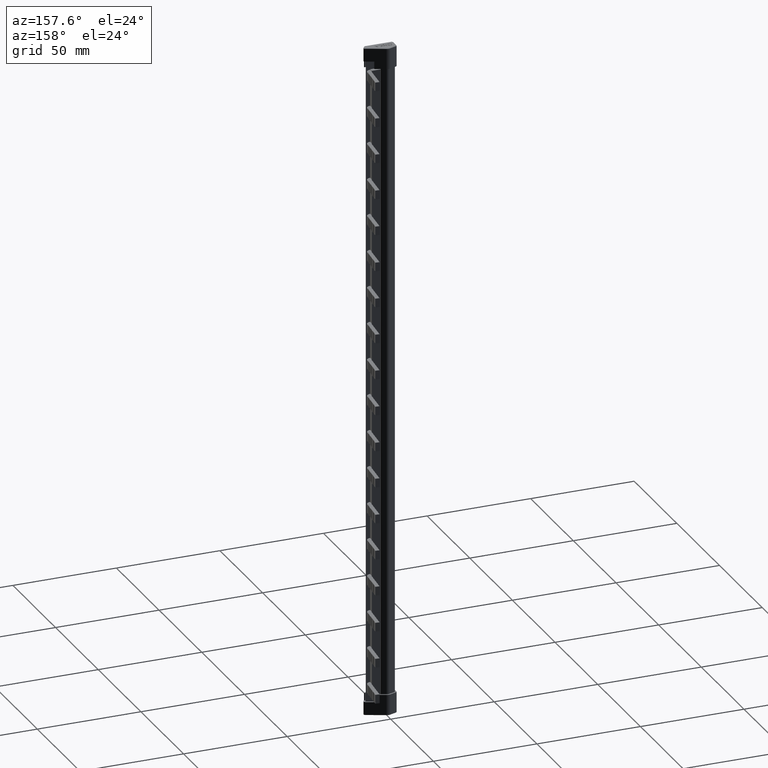
[diagram: clean part render]
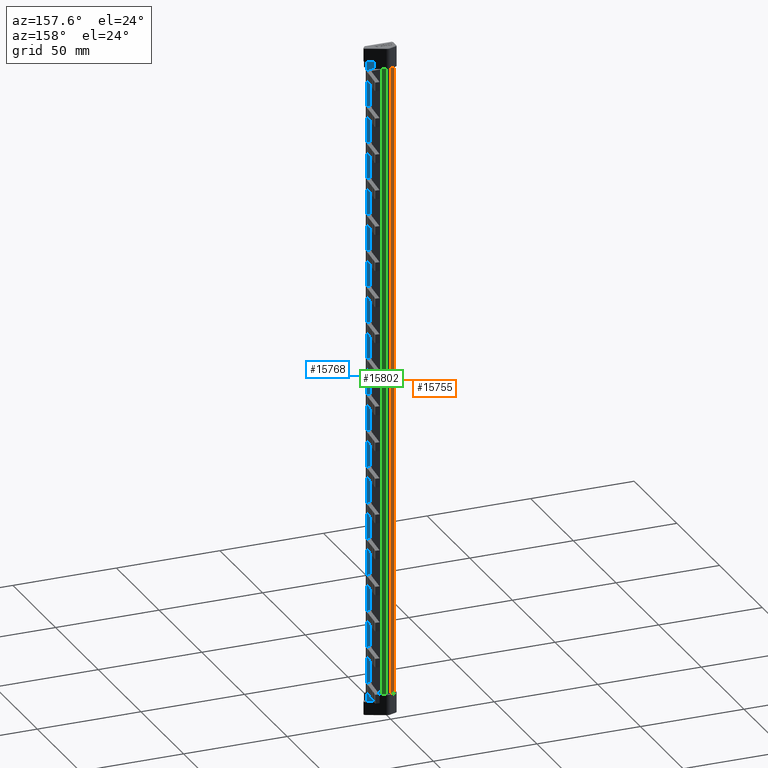
[diagram: same view with three faces highlighted in distinct colors, each labeled with its STEP entity id]
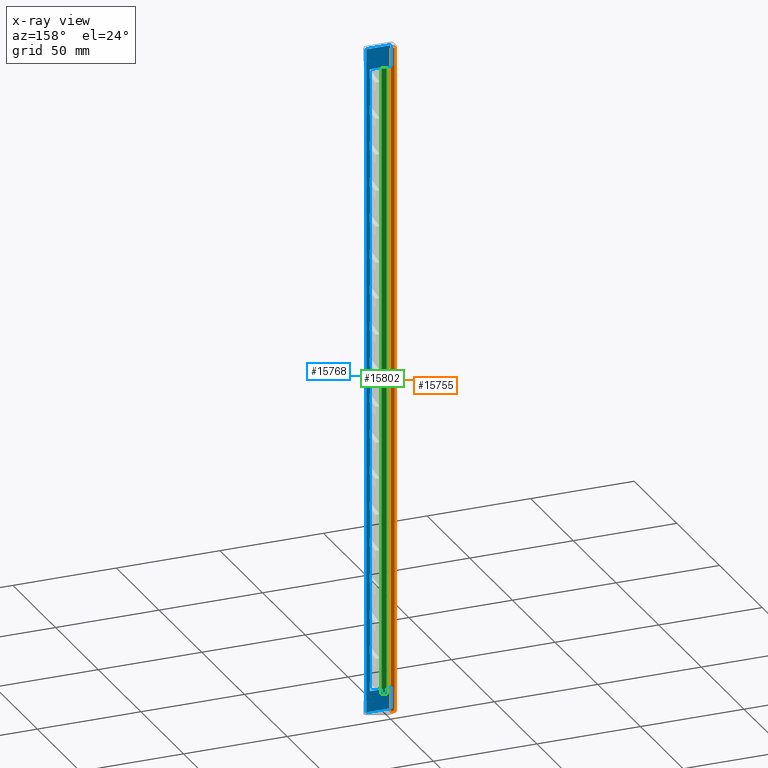
[diagram: x-ray of the same camera — body ghosted, the three highlighted faces saturated]
A machine part, auxiliary view with three faces highlighted in distinct colors.
The next image is the same camera in x-ray (body ghosted, the three faces saturated) — at least one of them is partly hidden behind the body in this view.
Their STEP definitions:

[orange] entity #15755 — the highlighted planar face has unit normal (-0.3358, 0.9419, 0).
#106 = EDGE_CURVE ( 'NONE', #26926, #26862, #21131, .T. ) ;
#208 = EDGE_CURVE ( 'NONE', #26862, #26924, #20118, .T. ) ;
#213 = EDGE_CURVE ( 'NONE', #26922, #26926, #20132, .T. ) ;
#217 = EDGE_CURVE ( 'NONE', #26924, #26984, #20143, .T. ) ;
#222 = EDGE_CURVE ( 'NONE', #26992, #26922, #20164, .T. ) ;
#277 = EDGE_CURVE ( 'NONE', #26992, #26984, #19352, .T. ) ;
#1245 = VECTOR ( 'NONE', #21189, 1000.000000000000000 ) ;
#1342 = VECTOR ( 'NONE', #20159, 1000.000000000000100 ) ;
#1348 = VECTOR ( 'NONE', #20171, 1000.000000000000000 ) ;
#1361 = VECTOR ( 'NONE', #20088, 1000.000000000000000 ) ;
#1370 = VECTOR ( 'NONE', #20139, 999.9999999999998900 ) ;
#1390 = VECTOR ( 'NONE', #19331, 1000.000000000000000 ) ;
#4406 = AXIS2_PLACEMENT_3D ( 'NONE', #13151, #13175, #13147 ) ;
#6801 = CARTESIAN_POINT ( 'NONE',  ( 1.856509959660060500, 4.798316931443738800, -95.90000000000009100 ) ) ;
#6844 = CARTESIAN_POINT ( 'NONE',  ( 1.856509959644403000, 4.798316931438181500, 219.0000000000000000 ) ) ;
#6864 = CARTESIAN_POINT ( 'NONE',  ( 1.856509959583045200, 4.798316931416360700, -105.0000000000000400 ) ) ;
#6867 = CARTESIAN_POINT ( 'NONE',  ( -0.2554380165529534500, 4.045338471695516500, -105.0000000000000400 ) ) ;
#6878 = CARTESIAN_POINT ( 'NONE',  ( -0.2554380165529568900, 4.045338471695515600, 219.0000000000000000 ) ) ;
#6893 = CARTESIAN_POINT ( 'NONE',  ( 1.856509959678066800, 4.798316931450133700, 209.9000000000000100 ) ) ;
#8323 = ORIENTED_EDGE ( 'NONE', *, *, #222, .T. ) ;
#8345 = ORIENTED_EDGE ( 'NONE', *, *, #277, .F. ) ;
#8349 = ORIENTED_EDGE ( 'NONE', *, *, #217, .T. ) ;
#8353 = ORIENTED_EDGE ( 'NONE', *, *, #106, .T. ) ;
#8354 = ORIENTED_EDGE ( 'NONE', *, *, #208, .T. ) ;
#8407 = ORIENTED_EDGE ( 'NONE', *, *, #213, .T. ) ;
#13124 = PLANE ( 'NONE',  #4406 ) ;
#13147 = DIRECTION ( 'NONE',  ( -0.9419238198400018400, -0.3358266183881493100, 0.0000000000000000000 ) ) ;
#13151 = CARTESIAN_POINT ( 'NONE',  ( 1.856509959660052100, 4.798316931443761000, 199.0000000000000000 ) ) ;
#13175 = DIRECTION ( 'NONE',  ( -0.3358266183881493700, 0.9419238198400019500, 0.0000000000000000000 ) ) ;
#13176 = FACE_OUTER_BOUND ( 'NONE', #26568, .T. ) ;
#15755 = ADVANCED_FACE ( 'NONE', ( #13176 ), #13124, .T. ) ;
#19331 = DIRECTION ( 'NONE',  ( -0.0000000000000000000, -0.0000000000000000000, -1.000000000000000000 ) ) ;
#19334 = CARTESIAN_POINT ( 'NONE',  ( -0.2554380165529465100, 4.045338471695521900, 219.0000000000000000 ) ) ;
#19352 = LINE ( 'NONE', #19334, #1390 ) ;
#20088 = DIRECTION ( 'NONE',  ( 4.307407246271474200E-027, -1.216194766109910600E-026, -1.000000000000000000 ) ) ;
#20101 = CARTESIAN_POINT ( 'NONE',  ( 1.856509959660070700, 4.798316931443708600, -99.50000000000005700 ) ) ;
#20118 = LINE ( 'NONE', #20101, #1361 ) ;
#20132 = LINE ( 'NONE', #20168, #1348 ) ;
#20139 = DIRECTION ( 'NONE',  ( -0.9419238198400019500, -0.3358266183881490900, 0.0000000000000000000 ) ) ;
#20140 = CARTESIAN_POINT ( 'NONE',  ( 1.856509959660052100, 4.798316931443761000, 219.0000000000000000 ) ) ;
#20143 = LINE ( 'NONE', #20145, #1370 ) ;
#20145 = CARTESIAN_POINT ( 'NONE',  ( 1.856509959617743900, 4.798316931428678000, -105.0000000000000100 ) ) ;
#20159 = DIRECTION ( 'NONE',  ( 0.9419238198400018400, 0.3358266183881493100, -0.0000000000000000000 ) ) ;
#20164 = LINE ( 'NONE', #20140, #1342 ) ;
#20168 = CARTESIAN_POINT ( 'NONE',  ( 1.856509959698075900, 4.798316931457169900, 213.5000000000000600 ) ) ;
#20171 = DIRECTION ( 'NONE',  ( -4.307407246271474200E-027, 1.216194766109910600E-026, -1.000000000000000000 ) ) ;
#21131 = LINE ( 'NONE', #21144, #1245 ) ;
#21144 = CARTESIAN_POINT ( 'NONE',  ( 1.856509959681340400, 4.798316931451351400, 199.0000000000000000 ) ) ;
#21189 = DIRECTION ( 'NONE',  ( -0.0000000000000000000, -0.0000000000000000000, -1.000000000000000000 ) ) ;
#26568 = EDGE_LOOP ( 'NONE', ( #8349, #8345, #8323, #8407, #8353, #8354 ) ) ;
#26862 = VERTEX_POINT ( 'NONE', #6801 ) ;
#26922 = VERTEX_POINT ( 'NONE', #6844 ) ;
#26924 = VERTEX_POINT ( 'NONE', #6864 ) ;
#26926 = VERTEX_POINT ( 'NONE', #6893 ) ;
#26984 = VERTEX_POINT ( 'NONE', #6867 ) ;
#26992 = VERTEX_POINT ( 'NONE', #6878 ) ;

[blue] entity #15768 — the highlighted planar face has unit normal (-0, -1, 0).
#75 = EDGE_CURVE ( 'NONE', #26822, #26754, #20909, .T. ) ;
#78 = EDGE_CURVE ( 'NONE', #26643, #26561, #20969, .T. ) ;
#80 = EDGE_CURVE ( 'NONE', #26582, #26612, #20935, .T. ) ;
#83 = EDGE_CURVE ( 'NONE', #26652, #26707, #20945, .T. ) ;
#85 = EDGE_CURVE ( 'NONE', #26644, #26683, #20960, .T. ) ;
#90 = EDGE_CURVE ( 'NONE', #26607, #26608, #21036, .T. ) ;
#109 = EDGE_CURVE ( 'NONE', #26635, #26820, #21210, .T. ) ;
#117 = EDGE_CURVE ( 'NONE', #26641, #26600, #21331, .T. ) ;
#128 = EDGE_CURVE ( 'NONE', #26646, #26647, #21336, .T. ) ;
#202 = EDGE_CURVE ( 'NONE', #26900, #26802, #20046, .T. ) ;
#209 = EDGE_CURVE ( 'NONE', #26865, #28113, #20120, .T. ) ;
#236 = EDGE_CURVE ( 'NONE', #26840, #26900, #20175, .T. ) ;
#248 = EDGE_CURVE ( 'NONE', #26865, #26802, #20245, .T. ) ;
#329 = EDGE_CURVE ( 'NONE', #26607, #26601, #19474, .T. ) ;
#342 = EDGE_CURVE ( 'NONE', #26635, #26659, #19497, .T. ) ;
#385 = EDGE_CURVE ( 'NONE', #26582, #26638, #19671, .T. ) ;
#387 = EDGE_CURVE ( 'NONE', #26668, #26688, #19639, .T. ) ;
#388 = EDGE_CURVE ( 'NONE', #26600, #26648, #19675, .T. ) ;
#397 = EDGE_CURVE ( 'NONE', #26706, #26654, #19725, .T. ) ;
#399 = EDGE_CURVE ( 'NONE', #26683, #26650, #19722, .T. ) ;
#401 = EDGE_CURVE ( 'NONE', #26644, #26655, #19701, .T. ) ;
#402 = EDGE_CURVE ( 'NONE', #26561, #26630, #19708, .T. ) ;
#403 = EDGE_CURVE ( 'NONE', #26643, #26596, #19682, .T. ) ;
#408 = EDGE_CURVE ( 'NONE', #26612, #26562, #19683, .T. ) ;
#411 = EDGE_CURVE ( 'NONE', #26608, #26603, #19748, .T. ) ;
#412 = EDGE_CURVE ( 'NONE', #26641, #26633, #19730, .T. ) ;
#434 = EDGE_CURVE ( 'NONE', #26707, #26604, #19795, .T. ) ;
#438 = EDGE_CURVE ( 'NONE', #26646, #26631, #19823, .T. ) ;
#453 = EDGE_CURVE ( 'NONE', #26652, #26625, #19888, .T. ) ;
#458 = EDGE_CURVE ( 'NONE', #26677, #26672, #19885, .T. ) ;
#460 = EDGE_CURVE ( 'NONE', #26597, #26712, #19880, .T. ) ;
#466 = EDGE_CURVE ( 'NONE', #26629, #26649, #19894, .T. ) ;
#467 = EDGE_CURVE ( 'NONE', #26711, #26764, #19932, .T. ) ;
#468 = EDGE_CURVE ( 'NONE', #26682, #26689, #19922, .T. ) ;
#470 = EDGE_CURVE ( 'NONE', #26647, #26695, #19929, .T. ) ;
#477 = EDGE_CURVE ( 'NONE', #26733, #26714, #19941, .T. ) ;
#482 = EDGE_CURVE ( 'NONE', #26694, #26692, #19977, .T. ) ;
#488 = EDGE_CURVE ( 'NONE', #26620, #26656, #19973, .T. ) ;
#493 = EDGE_CURVE ( 'NONE', #26675, #26710, #19965, .T. ) ;
#494 = EDGE_CURVE ( 'NONE', #26664, #26616, #19987, .T. ) ;
#495 = EDGE_CURVE ( 'NONE', #26615, #26602, #20024, .T. ) ;
#503 = EDGE_CURVE ( 'NONE', #26679, #26703, #19992, .T. ) ;
#515 = EDGE_CURVE ( 'NONE', #26724, #26680, #4276, .T. ) ;
#523 = EDGE_CURVE ( 'NONE', #26760, #26726, #4313, .T. ) ;
#560 = EDGE_CURVE ( 'NONE', #26745, #26686, #3318, .T. ) ;
#564 = EDGE_CURVE ( 'NONE', #26639, #26622, #3362, .T. ) ;
#568 = EDGE_CURVE ( 'NONE', #26684, #26598, #3315, .T. ) ;
#576 = EDGE_CURVE ( 'NONE', #26754, #26772, #3381, .T. ) ;
#577 = EDGE_CURVE ( 'NONE', #26703, #26714, #3404, .T. ) ;
#590 = EDGE_CURVE ( 'NONE', #26712, #26710, #3451, .T. ) ;
#592 = EDGE_CURVE ( 'NONE', #26735, #26715, #3412, .T. ) ;
#595 = EDGE_CURVE ( 'NONE', #26604, #26631, #3472, .T. ) ;
#597 = EDGE_CURVE ( 'NONE', #26695, #26596, #3477, .T. ) ;
#607 = EDGE_CURVE ( 'NONE', #26656, #26655, #3490, .T. ) ;
#623 = EDGE_CURVE ( 'NONE', #26726, #26680, #3605, .T. ) ;
#624 = EDGE_CURVE ( 'NONE', #26686, #26616, #3569, .T. ) ;
#628 = EDGE_CURVE ( 'NONE', #26650, #26625, #3535, .T. ) ;
#635 = EDGE_CURVE ( 'NONE', #26692, #26649, #3549, .T. ) ;
#637 = EDGE_CURVE ( 'NONE', #26735, #26760, #3653, .T. ) ;
#644 = EDGE_CURVE ( 'NONE', #26562, #26659, #3645, .T. ) ;
#646 = EDGE_CURVE ( 'NONE', #26672, #26654, #3617, .T. ) ;
#648 = EDGE_CURVE ( 'NONE', #26675, #26694, #3650, .T. ) ;
#651 = EDGE_CURVE ( 'NONE', #26615, #26620, #3638, .T. ) ;
#655 = EDGE_CURVE ( 'NONE', #26689, #26598, #3714, .T. ) ;
#659 = EDGE_CURVE ( 'NONE', #26630, #26633, #3744, .T. ) ;
#661 = EDGE_CURVE ( 'NONE', #26684, #26677, #3718, .T. ) ;
#668 = EDGE_CURVE ( 'NONE', #26706, #26668, #3746, .T. ) ;
#669 = EDGE_CURVE ( 'NONE', #26772, #26715, #3756, .T. ) ;
#676 = EDGE_CURVE ( 'NONE', #26648, #26601, #3813, .T. ) ;
#682 = EDGE_CURVE ( 'NONE', #26724, #26679, #3787, .T. ) ;
#683 = EDGE_CURVE ( 'NONE', #26664, #26711, #3804, .T. ) ;
#684 = EDGE_CURVE ( 'NONE', #26639, #26597, #3795, .T. ) ;
#685 = EDGE_CURVE ( 'NONE', #26840, #26822, #3805, .T. ) ;
#686 = EDGE_CURVE ( 'NONE', #26629, #26682, #3846, .T. ) ;
#688 = EDGE_CURVE ( 'NONE', #26820, #28085, #3834, .T. ) ;
#689 = EDGE_CURVE ( 'NONE', #26603, #26638, #3838, .T. ) ;
#693 = EDGE_CURVE ( 'NONE', #26688, #26602, #3823, .T. ) ;
#694 = EDGE_CURVE ( 'NONE', #26764, #26622, #3851, .T. ) ;
#695 = EDGE_CURVE ( 'NONE', #26733, #26745, #3832, .T. ) ;
#1062 = VECTOR ( 'NONE', #3695, 1000.000000000000000 ) ;
#1069 = VECTOR ( 'NONE', #3637, 1000.000000000000000 ) ;
#1075 = VECTOR ( 'NONE', #3699, 1000.000000000000000 ) ;
#1076 = VECTOR ( 'NONE', #3684, 1000.000000000000000 ) ;
#1083 = VECTOR ( 'NONE', #3810, 1000.000000000000000 ) ;
#1088 = VECTOR ( 'NONE', #3725, 1000.000000000000000 ) ;
#1102 = VECTOR ( 'NONE', #3791, 1000.000000000000000 ) ;
#1105 = VECTOR ( 'NONE', #3772, 1000.000000000000000 ) ;
#1106 = VECTOR ( 'NONE', #3785, 1000.000000000000000 ) ;
#1107 = VECTOR ( 'NONE', #3755, 1000.000000000000000 ) ;
#1110 = VECTOR ( 'NONE', #3747, 1000.000000000000000 ) ;
#1111 = VECTOR ( 'NONE', #3841, 1000.000000000000000 ) ;
#1112 = VECTOR ( 'NONE', #3796, 1000.000000000000000 ) ;
#1114 = VECTOR ( 'NONE', #3844, 1000.000000000000000 ) ;
#1115 = VECTOR ( 'NONE', #3828, 1000.000000000000000 ) ;
#1118 = VECTOR ( 'NONE', #3853, 1000.000000000000000 ) ;
#1176 = VECTOR ( 'NONE', #20941, 1000.000000000000000 ) ;
#1177 = VECTOR ( 'NONE', #20973, 1000.000000000000000 ) ;
#1181 = VECTOR ( 'NONE', #20942, 1000.000000000000000 ) ;
#1193 = VECTOR ( 'NONE', #21078, 1000.000000000000000 ) ;
#1203 = VECTOR ( 'NONE', #20936, 1000.000000000000000 ) ;
#1204 = VECTOR ( 'NONE', #21114, 1000.000000000000000 ) ;
#1229 = VECTOR ( 'NONE', #21219, 1000.000000000000000 ) ;
#1239 = VECTOR ( 'NONE', #21272, 1000.000000000000000 ) ;
#1255 = VECTOR ( 'NONE', #21354, 1000.000000000000000 ) ;
#1307 = VECTOR ( 'NONE', #3850, 1000.000000000000000 ) ;
#1364 = VECTOR ( 'NONE', #20104, 1000.000000000000000 ) ;
#1365 = VECTOR ( 'NONE', #20122, 1000.000000000000000 ) ;
#1372 = VECTOR ( 'NONE', #3856, 1000.000000000000000 ) ;
#1380 = VECTOR ( 'NONE', #3843, 1000.000000000000000 ) ;
#1382 = VECTOR ( 'NONE', #20188, 1000.000000000000000 ) ;
#1407 = VECTOR ( 'NONE', #20248, 1000.000000000000000 ) ;
#1463 = VECTOR ( 'NONE', #19521, 1000.000000000000000 ) ;
#1486 = VECTOR ( 'NONE', #19514, 1000.000000000000000 ) ;
#1522 = VECTOR ( 'NONE', #19638, 1000.000000000000000 ) ;
#1533 = VECTOR ( 'NONE', #19660, 1000.000000000000000 ) ;
#1554 = VECTOR ( 'NONE', #19703, 1000.000000000000000 ) ;
#1560 = VECTOR ( 'NONE', #19663, 1000.000000000000000 ) ;
#1566 = VECTOR ( 'NONE', #19736, 1000.000000000000000 ) ;
#1576 = VECTOR ( 'NONE', #19772, 1000.000000000000000 ) ;
#1577 = VECTOR ( 'NONE', #19858, 1000.000000000000000 ) ;
#1593 = VECTOR ( 'NONE', #19746, 1000.000000000000000 ) ;
#1604 = VECTOR ( 'NONE', #19715, 1000.000000000000000 ) ;
#1608 = VECTOR ( 'NONE', #19726, 1000.000000000000000 ) ;
#1613 = VECTOR ( 'NONE', #19737, 1000.000000000000000 ) ;
#1623 = VECTOR ( 'NONE', #19705, 1000.000000000000000 ) ;
#1624 = VECTOR ( 'NONE', #19709, 1000.000000000000000 ) ;
#1642 = VECTOR ( 'NONE', #19908, 1000.000000000000000 ) ;
#1649 = VECTOR ( 'NONE', #19936, 1000.000000000000000 ) ;
#1650 = VECTOR ( 'NONE', #19937, 1000.000000000000000 ) ;
#1658 = VECTOR ( 'NONE', #19860, 1000.000000000000000 ) ;
#1663 = VECTOR ( 'NONE', #19891, 1000.000000000000000 ) ;
#1667 = VECTOR ( 'NONE', #19983, 1000.000000000000000 ) ;
#1674 = VECTOR ( 'NONE', #19931, 1000.000000000000000 ) ;
#1685 = VECTOR ( 'NONE', #19942, 1000.000000000000000 ) ;
#1688 = VECTOR ( 'NONE', #19881, 1000.000000000000000 ) ;
#1696 = VECTOR ( 'NONE', #20000, 1000.000000000000000 ) ;
#1709 = VECTOR ( 'NONE', #19988, 1000.000000000000000 ) ;
#1719 = VECTOR ( 'NONE', #19986, 1000.000000000000000 ) ;
#1734 = VECTOR ( 'NONE', #4319, 1000.000000000000000 ) ;
#1745 = VECTOR ( 'NONE', #20018, 1000.000000000000000 ) ;
#1746 = VECTOR ( 'NONE', #19975, 1000.000000000000000 ) ;
#1756 = VECTOR ( 'NONE', #4241, 1000.000000000000000 ) ;
#1766 = VECTOR ( 'NONE', #3332, 1000.000000000000000 ) ;
#1771 = VECTOR ( 'NONE', #3366, 1000.000000000000000 ) ;
#1782 = VECTOR ( 'NONE', #3367, 1000.000000000000000 ) ;
#1791 = VECTOR ( 'NONE', #3346, 1000.000000000000000 ) ;
#1808 = VECTOR ( 'NONE', #3395, 1000.000000000000000 ) ;
#1817 = VECTOR ( 'NONE', #3603, 1000.000000000000000 ) ;
#1822 = VECTOR ( 'NONE', #3478, 1000.000000000000000 ) ;
#1825 = VECTOR ( 'NONE', #3500, 1000.000000000000000 ) ;
#1826 = VECTOR ( 'NONE', #3482, 1000.000000000000000 ) ;
#1835 = VECTOR ( 'NONE', #3453, 1000.000000000000000 ) ;
#1842 = VECTOR ( 'NONE', #3660, 1000.000000000000000 ) ;
#1844 = VECTOR ( 'NONE', #3579, 1000.000000000000000 ) ;
#1853 = VECTOR ( 'NONE', #3601, 1000.000000000000000 ) ;
#1861 = VECTOR ( 'NONE', #3619, 1000.000000000000000 ) ;
#1869 = VECTOR ( 'NONE', #3563, 1000.000000000000000 ) ;
#1879 = VECTOR ( 'NONE', #3622, 1000.000000000000000 ) ;
#3315 = LINE ( 'NONE', #3369, #1771 ) ;
#3318 = LINE ( 'NONE', #3357, #1791 ) ;
#3332 = DIRECTION ( 'NONE',  ( 1.000000000000000000, 4.290194648749032600E-047, 1.654357783328367100E-024 ) ) ;
#3346 = DIRECTION ( 'NONE',  ( 1.000000000000000000, 4.290194648749032600E-047, 1.654357783328367100E-024 ) ) ;
#3357 = CARTESIAN_POINT ( 'NONE',  ( 10.39174263404482100, 1.100000111734499500, 155.9500000000000700 ) ) ;
#3359 = CARTESIAN_POINT ( 'NONE',  ( 10.39174263404482100, 1.100000111734499500, 134.0500000000000100 ) ) ;
#3362 = LINE ( 'NONE', #3359, #1766 ) ;
#3366 = DIRECTION ( 'NONE',  ( 1.000000000000000000, 4.290194648749032600E-047, 1.654357783328367100E-024 ) ) ;
#3367 = DIRECTION ( 'NONE',  ( 1.000000000000000000, 4.290194648749032600E-047, 1.654357783328367100E-024 ) ) ;
#3369 = CARTESIAN_POINT ( 'NONE',  ( 10.39174263404482100, 1.100000111734499500, 81.25000000000001400 ) ) ;
#3381 = LINE ( 'NONE', #3396, #1782 ) ;
#3395 = DIRECTION ( 'NONE',  ( -0.0000000000000000000, -0.0000000000000000000, -1.000000000000000000 ) ) ;
#3396 = CARTESIAN_POINT ( 'NONE',  ( 10.39174263404482100, 1.100000111734499500, 208.7500000000000600 ) ) ;
#3404 = LINE ( 'NONE', #3405, #1808 ) ;
#3405 = CARTESIAN_POINT ( 'NONE',  ( 10.58351463784653200, 1.100000069286415400, -105.9240927571827100 ) ) ;
#3412 = LINE ( 'NONE', #3480, #1822 ) ;
#3421 = CARTESIAN_POINT ( 'NONE',  ( 10.58351463784653200, 1.100000069286415400, -105.9240927571827100 ) ) ;
#3451 = LINE ( 'NONE', #3421, #1835 ) ;
#3453 = DIRECTION ( 'NONE',  ( -0.0000000000000000000, -0.0000000000000000000, -1.000000000000000000 ) ) ;
#3472 = LINE ( 'NONE', #3496, #1826 ) ;
#3477 = LINE ( 'NONE', #3499, #1825 ) ;
#3478 = DIRECTION ( 'NONE',  ( 1.000000000000000000, 4.290194648749032600E-047, 1.654357783328367100E-024 ) ) ;
#3480 = CARTESIAN_POINT ( 'NONE',  ( 10.39174263404482100, 1.100000111734499500, 204.4500000000000200 ) ) ;
#3482 = DIRECTION ( 'NONE',  ( -0.0000000000000000000, -0.0000000000000000000, -1.000000000000000000 ) ) ;
#3490 = LINE ( 'NONE', #3554, #1869 ) ;
#3496 = CARTESIAN_POINT ( 'NONE',  ( 10.58351463784653200, 1.100000069286415400, -105.9240927571827100 ) ) ;
#3499 = CARTESIAN_POINT ( 'NONE',  ( 10.58351463784653200, 1.100000069286415400, -105.9240927571827100 ) ) ;
#3500 = DIRECTION ( 'NONE',  ( -0.0000000000000000000, -0.0000000000000000000, -1.000000000000000000 ) ) ;
#3535 = LINE ( 'NONE', #3567, #1817 ) ;
#3549 = LINE ( 'NONE', #3658, #1842 ) ;
#3554 = CARTESIAN_POINT ( 'NONE',  ( 10.58351463784653200, 1.100000069286415400, -105.9240927571827100 ) ) ;
#3563 = DIRECTION ( 'NONE',  ( -0.0000000000000000000, -0.0000000000000000000, -1.000000000000000000 ) ) ;
#3567 = CARTESIAN_POINT ( 'NONE',  ( 10.58351463784653200, 1.100000069286415400, -105.9240927571827100 ) ) ;
#3569 = LINE ( 'NONE', #3582, #1844 ) ;
#3579 = DIRECTION ( 'NONE',  ( -0.0000000000000000000, -0.0000000000000000000, -1.000000000000000000 ) ) ;
#3582 = CARTESIAN_POINT ( 'NONE',  ( 10.58351463784653200, 1.100000069286415400, -105.9240927571827100 ) ) ;
#3601 = DIRECTION ( 'NONE',  ( -0.0000000000000000000, -0.0000000000000000000, -1.000000000000000000 ) ) ;
#3603 = DIRECTION ( 'NONE',  ( -0.0000000000000000000, -0.0000000000000000000, -1.000000000000000000 ) ) ;
#3605 = LINE ( 'NONE', #3608, #1853 ) ;
#3608 = CARTESIAN_POINT ( 'NONE',  ( 10.58351463784653200, 1.100000069286415400, -105.9240927571827100 ) ) ;
#3617 = LINE ( 'NONE', #3636, #1069 ) ;
#3619 = DIRECTION ( 'NONE',  ( -0.0000000000000000000, -0.0000000000000000000, -1.000000000000000000 ) ) ;
#3622 = DIRECTION ( 'NONE',  ( -0.0000000000000000000, -0.0000000000000000000, -1.000000000000000000 ) ) ;
#3636 = CARTESIAN_POINT ( 'NONE',  ( 10.58351463784653200, 1.100000069286415400, -105.9240927571827100 ) ) ;
#3637 = DIRECTION ( 'NONE',  ( -0.0000000000000000000, -0.0000000000000000000, -1.000000000000000000 ) ) ;
#3638 = LINE ( 'NONE', #3705, #1075 ) ;
#3641 = CARTESIAN_POINT ( 'NONE',  ( 10.37430495582744600, 1.100000111734499500, -105.9240927571827100 ) ) ;
#3642 = CARTESIAN_POINT ( 'NONE',  ( 10.58351463784653200, 1.100000069286415400, -105.9240927571827100 ) ) ;
#3645 = LINE ( 'NONE', #3642, #1879 ) ;
#3650 = LINE ( 'NONE', #3672, #1062 ) ;
#3653 = LINE ( 'NONE', #3641, #1861 ) ;
#3658 = CARTESIAN_POINT ( 'NONE',  ( 10.58351463784653200, 1.100000069286415400, -105.9240927571827100 ) ) ;
#3660 = DIRECTION ( 'NONE',  ( -0.0000000000000000000, -0.0000000000000000000, -1.000000000000000000 ) ) ;
#3667 = CARTESIAN_POINT ( 'NONE',  ( 10.58351463784653200, 1.100000069286415400, -105.9240927571827100 ) ) ;
#3672 = CARTESIAN_POINT ( 'NONE',  ( 10.37430495582744600, 1.100000111734499500, -105.9240927571827100 ) ) ;
#3684 = DIRECTION ( 'NONE',  ( -0.0000000000000000000, -0.0000000000000000000, -1.000000000000000000 ) ) ;
#3695 = DIRECTION ( 'NONE',  ( -0.0000000000000000000, -0.0000000000000000000, -1.000000000000000000 ) ) ;
#3699 = DIRECTION ( 'NONE',  ( -0.0000000000000000000, -0.0000000000000000000, -1.000000000000000000 ) ) ;
#3705 = CARTESIAN_POINT ( 'NONE',  ( 10.37430495582766800, 1.100000111734499500, -105.9240927571827100 ) ) ;
#3714 = LINE ( 'NONE', #3667, #1076 ) ;
#3718 = LINE ( 'NONE', #3736, #1110 ) ;
#3725 = DIRECTION ( 'NONE',  ( -0.0000000000000000000, -0.0000000000000000000, -1.000000000000000000 ) ) ;
#3728 = CARTESIAN_POINT ( 'NONE',  ( 10.58351463784653200, 1.100000069286415400, -105.9240927571827100 ) ) ;
#3736 = CARTESIAN_POINT ( 'NONE',  ( 10.37430495582766800, 1.100000111734499500, -105.9240927571827100 ) ) ;
#3744 = LINE ( 'NONE', #3728, #1088 ) ;
#3746 = LINE ( 'NONE', #3754, #1107 ) ;
#3747 = DIRECTION ( 'NONE',  ( -0.0000000000000000000, -0.0000000000000000000, -1.000000000000000000 ) ) ;
#3754 = CARTESIAN_POINT ( 'NONE',  ( 10.37430495582766800, 1.100000111734499500, -105.9240927571827100 ) ) ;
#3755 = DIRECTION ( 'NONE',  ( -0.0000000000000000000, -0.0000000000000000000, -1.000000000000000000 ) ) ;
#3756 = LINE ( 'NONE', #3775, #1083 ) ;
#3770 = CARTESIAN_POINT ( 'NONE',  ( 10.37430495582744600, 1.100000111734499500, -105.9240927571827100 ) ) ;
#3772 = DIRECTION ( 'NONE',  ( -0.0000000000000000000, -0.0000000000000000000, -1.000000000000000000 ) ) ;
#3775 = CARTESIAN_POINT ( 'NONE',  ( 10.58351463784653200, 1.100000069286415400, -105.9240927571827100 ) ) ;
#3785 = DIRECTION ( 'NONE',  ( -0.0000000000000000000, -0.0000000000000000000, -1.000000000000000000 ) ) ;
#3787 = LINE ( 'NONE', #3800, #1102 ) ;
#3791 = DIRECTION ( 'NONE',  ( -0.0000000000000000000, -0.0000000000000000000, -1.000000000000000000 ) ) ;
#3792 = CARTESIAN_POINT ( 'NONE',  ( 10.58351463784653200, 1.100000069286415400, -105.9240927571827100 ) ) ;
#3795 = LINE ( 'NONE', #3808, #1112 ) ;
#3796 = DIRECTION ( 'NONE',  ( -0.0000000000000000000, -0.0000000000000000000, -1.000000000000000000 ) ) ;
#3800 = CARTESIAN_POINT ( 'NONE',  ( 10.37430495582744600, 1.100000111734499500, -105.9240927571827100 ) ) ;
#3804 = LINE ( 'NONE', #3770, #1106 ) ;
#3805 = LINE ( 'NONE', #3847, #1114 ) ;
#3808 = CARTESIAN_POINT ( 'NONE',  ( 10.37430495582744600, 1.100000111734499500, -105.9240927571827100 ) ) ;
#3810 = DIRECTION ( 'NONE',  ( -0.0000000000000000000, -0.0000000000000000000, -1.000000000000000000 ) ) ;
#3813 = LINE ( 'NONE', #3792, #1105 ) ;
#3821 = CARTESIAN_POINT ( 'NONE',  ( 10.37430495582744600, 1.100000111734499500, -94.99999999999997200 ) ) ;
#3822 = CARTESIAN_POINT ( 'NONE',  ( 10.37430495582744600, 1.100000111734499500, -105.9240927571827100 ) ) ;
#3823 = LINE ( 'NONE', #3826, #1307 ) ;
#3824 = CARTESIAN_POINT ( 'NONE',  ( 10.37430495582744600, 1.100000111734499500, -105.9240927571827100 ) ) ;
#3826 = CARTESIAN_POINT ( 'NONE',  ( 10.58351463784653200, 1.100000069286415400, -105.9240927571827100 ) ) ;
#3828 = DIRECTION ( 'NONE',  ( -0.0000000000000000000, -0.0000000000000000000, -1.000000000000000000 ) ) ;
#3832 = LINE ( 'NONE', #3824, #1380 ) ;
#3834 = LINE ( 'NONE', #3821, #1111 ) ;
#3838 = LINE ( 'NONE', #3867, #1118 ) ;
#3841 = DIRECTION ( 'NONE',  ( -0.9999999999999794600, 2.028973214838700800E-007, -0.0000000000000000000 ) ) ;
#3843 = DIRECTION ( 'NONE',  ( -0.0000000000000000000, -0.0000000000000000000, -1.000000000000000000 ) ) ;
#3844 = DIRECTION ( 'NONE',  ( 0.9999999999999794600, -2.028973214838700800E-007, 0.0000000000000000000 ) ) ;
#3846 = LINE ( 'NONE', #3822, #1115 ) ;
#3847 = CARTESIAN_POINT ( 'NONE',  ( 10.37430495582744600, 1.100000111734499500, 209.0000000000000000 ) ) ;
#3850 = DIRECTION ( 'NONE',  ( -0.0000000000000000000, -0.0000000000000000000, -1.000000000000000000 ) ) ;
#3851 = LINE ( 'NONE', #3866, #1372 ) ;
#3853 = DIRECTION ( 'NONE',  ( -0.0000000000000000000, -0.0000000000000000000, -1.000000000000000000 ) ) ;
#3856 = DIRECTION ( 'NONE',  ( -0.0000000000000000000, -0.0000000000000000000, -1.000000000000000000 ) ) ;
#3866 = CARTESIAN_POINT ( 'NONE',  ( 10.58351463784653200, 1.100000069286415400, -105.9240927571827100 ) ) ;
#3867 = CARTESIAN_POINT ( 'NONE',  ( 10.58351463784653200, 1.100000069286415400, -105.9240927571827100 ) ) ;
#4241 = DIRECTION ( 'NONE',  ( 1.000000000000000000, 4.290194648749032600E-047, 1.654357783328367100E-024 ) ) ;
#4267 = CARTESIAN_POINT ( 'NONE',  ( 10.39174263404482100, 1.100000111734499500, 186.8500000000000200 ) ) ;
#4276 = LINE ( 'NONE', #4267, #1756 ) ;
#4313 = LINE ( 'NONE', #4316, #1734 ) ;
#4316 = CARTESIAN_POINT ( 'NONE',  ( 10.39174263404482100, 1.100000111734499500, 191.1500000000000100 ) ) ;
#4319 = DIRECTION ( 'NONE',  ( 1.000000000000000000, 4.290194648749032600E-047, 1.654357783328367100E-024 ) ) ;
#4387 = AXIS2_PLACEMENT_3D ( 'NONE', #13269, #13242, #13279 ) ;
#4531 = VECTOR ( 'NONE', #12705, 1000.000000000000000 ) ;
#6513 = CARTESIAN_POINT ( 'NONE',  ( 10.58351488040069600, 1.100000090510457400, 81.25000000000001400 ) ) ;
#6514 = CARTESIAN_POINT ( 'NONE',  ( 10.58351488040069600, 1.100000090510457400, 46.05000000000000400 ) ) ;
#6517 = CARTESIAN_POINT ( 'NONE',  ( 10.37430495582744400, 1.100000111734499500, -59.54999999999999000 ) ) ;
#6518 = CARTESIAN_POINT ( 'NONE',  ( 10.37430495582744400, 1.100000111734499500, -72.84999999999998000 ) ) ;
#6522 = CARTESIAN_POINT ( 'NONE',  ( 10.58351488040069600, 1.100000090510457400, -72.84999999999999400 ) ) ;
#6523 = CARTESIAN_POINT ( 'NONE',  ( 10.58351488040069600, 1.100000090510457400, -90.45000000000000300 ) ) ;
#6524 = CARTESIAN_POINT ( 'NONE',  ( 10.58351488040069600, 1.100000090510457400, -2.449999999999979700 ) ) ;
#6535 = CARTESIAN_POINT ( 'NONE',  ( 10.37430495582744400, 1.100000111734499500, -37.64999999999998400 ) ) ;
#6548 = CARTESIAN_POINT ( 'NONE',  ( 10.58351488040069600, 1.100000090510457400, -24.34999999999998400 ) ) ;
#6551 = CARTESIAN_POINT ( 'NONE',  ( 10.37430495582737000, 1.100000111734499500, 120.7499999999999900 ) ) ;
#6555 = CARTESIAN_POINT ( 'NONE',  ( 10.37430495582744400, 1.100000111734499500, -55.24999999999998600 ) ) ;
#6556 = CARTESIAN_POINT ( 'NONE',  ( 10.58351488040069600, 1.100000090510457400, -59.54999999999999000 ) ) ;
#6576 = CARTESIAN_POINT ( 'NONE',  ( 10.37430495582744400, 1.100000111734499500, -77.14999999999999100 ) ) ;
#6577 = CARTESIAN_POINT ( 'NONE',  ( 10.58351488040069600, 1.100000090510457400, -77.14999999999999100 ) ) ;
#6579 = CARTESIAN_POINT ( 'NONE',  ( 10.37430495582744400, 1.100000111734499500, -20.04999999999997900 ) ) ;
#6580 = CARTESIAN_POINT ( 'NONE',  ( 10.58351488040069600, 1.100000090510457400, 63.65000000000001300 ) ) ;
#6585 = CARTESIAN_POINT ( 'NONE',  ( 10.37430495582737000, 1.100000111734499500, 134.0500000000000100 ) ) ;
#6587 = CARTESIAN_POINT ( 'NONE',  ( 10.37430495582737000, 1.100000111734499500, 151.6499999999999800 ) ) ;
#6591 = CARTESIAN_POINT ( 'NONE',  ( 10.37430495582744400, 1.100000111734499500, -41.94999999999998900 ) ) ;
#6593 = CARTESIAN_POINT ( 'NONE',  ( 10.37430495582737000, 1.100000111734499500, 98.85000000000003700 ) ) ;
#6594 = CARTESIAN_POINT ( 'NONE',  ( 10.37430495582744400, 1.100000111734499500, -90.44999999999998900 ) ) ;
#6596 = CARTESIAN_POINT ( 'NONE',  ( 10.37430495582744400, 1.100000111734499500, 28.45000000000000300 ) ) ;
#6598 = CARTESIAN_POINT ( 'NONE',  ( 10.58351488040069600, 1.100000090510457400, 151.6500000000000100 ) ) ;
#6602 = CARTESIAN_POINT ( 'NONE',  ( 10.37430495582744400, 1.100000111734499500, 10.84999999999999800 ) ) ;
#6603 = CARTESIAN_POINT ( 'NONE',  ( 10.58351488040069600, 1.100000090510457400, -41.94999999999998900 ) ) ;
#6604 = CARTESIAN_POINT ( 'NONE',  ( 10.58351488040069600, 1.100000090510457400, 28.45000000000000300 ) ) ;
#6605 = CARTESIAN_POINT ( 'NONE',  ( 10.58351488040069600, 1.100000090510457400, 32.75000000000000000 ) ) ;
#6606 = CARTESIAN_POINT ( 'NONE',  ( 10.58351488040069600, 1.100000090510457400, -94.75000000000000000 ) ) ;
#6610 = CARTESIAN_POINT ( 'NONE',  ( 10.37430495582744400, 1.100000111734499500, 50.35000000000001600 ) ) ;
#6614 = CARTESIAN_POINT ( 'NONE',  ( 10.37430495582744400, 1.100000111734499500, -94.75000000000000000 ) ) ;
#6617 = CARTESIAN_POINT ( 'NONE',  ( 10.58351488040069600, 1.100000090510457400, 67.95000000000003100 ) ) ;
#6622 = CARTESIAN_POINT ( 'NONE',  ( 10.58351488040069600, 1.100000090510457400, 10.84999999999999800 ) ) ;
#6623 = CARTESIAN_POINT ( 'NONE',  ( 10.37430495582744400, 1.100000111734499500, -24.34999999999998400 ) ) ;
#6624 = CARTESIAN_POINT ( 'NONE',  ( 10.58351488040069600, 1.100000090510457400, -6.749999999999978700 ) ) ;
#6626 = CARTESIAN_POINT ( 'NONE',  ( 10.58351488040069600, 1.100000090510457400, 15.14999999999999700 ) ) ;
#6629 = CARTESIAN_POINT ( 'NONE',  ( 10.58351488040069600, 1.100000090510457400, 134.0500000000000100 ) ) ;
#6630 = CARTESIAN_POINT ( 'NONE',  ( 10.37430495582744400, 1.100000111734499500, 46.05000000000000400 ) ) ;
#6634 = CARTESIAN_POINT ( 'NONE',  ( 10.37430495582744400, 1.100000111734499500, 32.75000000000000700 ) ) ;
#6635 = CARTESIAN_POINT ( 'NONE',  ( 10.37430495582744400, 1.100000111734499500, -6.749999999999978700 ) ) ;
#6636 = CARTESIAN_POINT ( 'NONE',  ( 10.58351488040069600, 1.100000090510457400, -55.24999999999999300 ) ) ;
#6637 = CARTESIAN_POINT ( 'NONE',  ( 10.58351488040069600, 1.100000090510457400, 98.85000000000002300 ) ) ;
#6640 = CARTESIAN_POINT ( 'NONE',  ( 10.58351488040069600, 1.100000090510457400, -37.64999999999999100 ) ) ;
#6643 = CARTESIAN_POINT ( 'NONE',  ( 10.37430495582737000, 1.100000111734499500, 204.4500000000000200 ) ) ;
#6645 = CARTESIAN_POINT ( 'NONE',  ( 10.58351488040069600, 1.100000090510457400, 85.55000000000001100 ) ) ;
#6648 = CARTESIAN_POINT ( 'NONE',  ( 10.37430495582737000, 1.100000111734499500, 103.1500000000000200 ) ) ;
#6649 = CARTESIAN_POINT ( 'NONE',  ( 10.58351488040069600, 1.100000090510457400, 50.35000000000001600 ) ) ;
#6651 = CARTESIAN_POINT ( 'NONE',  ( 10.37430495582744400, 1.100000111734499500, 15.15000000000000200 ) ) ;
#6653 = CARTESIAN_POINT ( 'NONE',  ( 10.37430495582737000, 1.100000111734499500, 173.5500000000000100 ) ) ;
#6655 = CARTESIAN_POINT ( 'NONE',  ( 10.58351488040069600, 1.100000090510457400, 116.4500000000000300 ) ) ;
#6656 = CARTESIAN_POINT ( 'NONE',  ( 10.37430495582737000, 1.100000111734499500, 138.3500000000000200 ) ) ;
#6658 = CARTESIAN_POINT ( 'NONE',  ( 10.58351488040069600, 1.100000090510457400, 204.4500000000000200 ) ) ;
#6659 = CARTESIAN_POINT ( 'NONE',  ( 10.58351488040069600, 1.100000090510457400, -20.04999999999998300 ) ) ;
#6660 = CARTESIAN_POINT ( 'NONE',  ( 10.58351488040069600, 1.100000090510457400, 186.8500000000000200 ) ) ;
#6661 = CARTESIAN_POINT ( 'NONE',  ( 10.58351488040069600, 1.100000090510457400, 120.7500000000000100 ) ) ;
#6662 = CARTESIAN_POINT ( 'NONE',  ( 10.58351488040069600, 1.100000090510457400, 173.5500000000000100 ) ) ;
#6665 = CARTESIAN_POINT ( 'NONE',  ( 10.58351488040069600, 1.100000090510457400, 155.9500000000000700 ) ) ;
#6669 = CARTESIAN_POINT ( 'NONE',  ( 10.37430495582744400, 1.100000111734499500, 67.95000000000003100 ) ) ;
#6681 = CARTESIAN_POINT ( 'NONE',  ( 10.37430495582737000, 1.100000111734499500, 169.2500000000000000 ) ) ;
#6682 = CARTESIAN_POINT ( 'NONE',  ( 10.37430495582744400, 1.100000111734499500, -2.449999999999979700 ) ) ;
#6685 = CARTESIAN_POINT ( 'NONE',  ( 10.37430495582737000, 1.100000111734499500, 186.8499999999999900 ) ) ;
#6686 = CARTESIAN_POINT ( 'NONE',  ( 10.37430495582744400, 1.100000111734499500, 63.65000000000001300 ) ) ;
#6690 = CARTESIAN_POINT ( 'NONE',  ( 10.58351488040069600, 1.100000090510457400, 169.2500000000000000 ) ) ;
#6693 = CARTESIAN_POINT ( 'NONE',  ( 10.58351488040069600, 1.100000090510457400, 191.1500000000000100 ) ) ;
#6697 = CARTESIAN_POINT ( 'NONE',  ( 10.37430495582737000, 1.100000111734499500, 116.4500000000000200 ) ) ;
#6699 = CARTESIAN_POINT ( 'NONE',  ( 10.37430495582737000, 1.100000111734499500, 85.55000000000001100 ) ) ;
#6701 = CARTESIAN_POINT ( 'NONE',  ( 10.58351488040069600, 1.100000090510457400, 103.1500000000000200 ) ) ;
#6703 = CARTESIAN_POINT ( 'NONE',  ( 10.37430495582744400, 1.100000111734499500, 81.25000000000001400 ) ) ;
#6717 = CARTESIAN_POINT ( 'NONE',  ( 10.37430495582737000, 1.100000111734499500, 191.1500000000000100 ) ) ;
#6720 = CARTESIAN_POINT ( 'NONE',  ( 10.58351488040069600, 1.100000090510457400, 138.3500000000000200 ) ) ;
#6751 = CARTESIAN_POINT ( 'NONE',  ( 10.37430495582724700, 1.100000111734499500, 208.7500000000000300 ) ) ;
#6762 = CARTESIAN_POINT ( 'NONE',  ( 10.37430495582737000, 1.100000111734499500, 155.9500000000000700 ) ) ;
#6763 = CARTESIAN_POINT ( 'NONE',  ( 10.58351488040069600, 1.100000090510457400, 208.7500000000000600 ) ) ;
#6773 = CARTESIAN_POINT ( 'NONE',  ( 0.5999928904455442700, 1.100002094916232600, 209.0000000000000000 ) ) ;
#6815 = CARTESIAN_POINT ( 'NONE',  ( 10.37430495582720100, 1.100000111734499500, 209.0000000000000000 ) ) ;
#6820 = CARTESIAN_POINT ( 'NONE',  ( 12.20616429985077500, 1.100000328770417900, 219.0000000000000000 ) ) ;
#6823 = CARTESIAN_POINT ( 'NONE',  ( 10.37430495582759300, 1.100000013578794000, -94.99999999999998600 ) ) ;
#6851 = CARTESIAN_POINT ( 'NONE',  ( 0.5999928904455442700, 1.100002094916230400, 219.0000000000000000 ) ) ;
#6885 = CARTESIAN_POINT ( 'NONE',  ( 12.20616429985077500, 1.099999740055146900, -105.0000000000000100 ) ) ;
#7043 = CARTESIAN_POINT ( 'NONE',  ( 0.5999928904455963400, 1.100001048311306300, -94.99999999999995700 ) ) ;
#7064 = CARTESIAN_POINT ( 'NONE',  ( 0.5999928904455430500, 1.100000001706378200, -105.0000000000000300 ) ) ;
#8028 = ORIENTED_EDGE ( 'NONE', *, *, #668, .F. ) ;
#8029 = ORIENTED_EDGE ( 'NONE', *, *, #397, .T. ) ;
#8041 = ORIENTED_EDGE ( 'NONE', *, *, #403, .T. ) ;
#8042 = ORIENTED_EDGE ( 'NONE', *, *, #635, .F. ) ;
#8043 = ORIENTED_EDGE ( 'NONE', *, *, #595, .F. ) ;
#8044 = ORIENTED_EDGE ( 'NONE', *, *, #434, .F. ) ;
#8045 = ORIENTED_EDGE ( 'NONE', *, *, #248, .F. ) ;
#8046 = ORIENTED_EDGE ( 'NONE', *, *, #401, .T. ) ;
#8047 = ORIENTED_EDGE ( 'NONE', *, *, #467, .F. ) ;
#8049 = ORIENTED_EDGE ( 'NONE', *, *, #387, .F. ) ;
#8050 = ORIENTED_EDGE ( 'NONE', *, *, #564, .T. ) ;
#8051 = ORIENTED_EDGE ( 'NONE', *, *, #202, .T. ) ;
#8052 = ORIENTED_EDGE ( 'NONE', *, *, #458, .F. ) ;
#8053 = ORIENTED_EDGE ( 'NONE', *, *, #648, .F. ) ;
#8054 = ORIENTED_EDGE ( 'NONE', *, *, #683, .F. ) ;
#8055 = ORIENTED_EDGE ( 'NONE', *, *, #411, .F. ) ;
#8056 = ORIENTED_EDGE ( 'NONE', *, *, #597, .F. ) ;
#8057 = ORIENTED_EDGE ( 'NONE', *, *, #460, .F. ) ;
#8058 = ORIENTED_EDGE ( 'NONE', *, *, #482, .F. ) ;
#8059 = ORIENTED_EDGE ( 'NONE', *, *, #646, .F. ) ;
#8060 = ORIENTED_EDGE ( 'NONE', *, *, #85, .F. ) ;
#8061 = ORIENTED_EDGE ( 'NONE', *, *, #342, .T. ) ;
#8062 = ORIENTED_EDGE ( 'NONE', *, *, #388, .F. ) ;
#8063 = ORIENTED_EDGE ( 'NONE', *, *, #209, .T. ) ;
#8064 = ORIENTED_EDGE ( 'NONE', *, *, #402, .F. ) ;
#8065 = ORIENTED_EDGE ( 'NONE', *, *, #688, .F. ) ;
#8066 = ORIENTED_EDGE ( 'NONE', *, *, #651, .F. ) ;
#8067 = ORIENTED_EDGE ( 'NONE', *, *, #399, .F. ) ;
#8068 = ORIENTED_EDGE ( 'NONE', *, *, #329, .T. ) ;
#8069 = ORIENTED_EDGE ( 'NONE', *, *, #493, .T. ) ;
#8070 = ORIENTED_EDGE ( 'NONE', *, *, #408, .F. ) ;
#8071 = ORIENTED_EDGE ( 'NONE', *, *, #22803, .T. ) ;
#8072 = ORIENTED_EDGE ( 'NONE', *, *, #117, .F. ) ;
#8073 = ORIENTED_EDGE ( 'NONE', *, *, #659, .F. ) ;
#8074 = ORIENTED_EDGE ( 'NONE', *, *, #412, .T. ) ;
#8076 = ORIENTED_EDGE ( 'NONE', *, *, #78, .F. ) ;
#8077 = ORIENTED_EDGE ( 'NONE', *, *, #689, .F. ) ;
#8078 = ORIENTED_EDGE ( 'NONE', *, *, #694, .F. ) ;
#8079 = ORIENTED_EDGE ( 'NONE', *, *, #607, .F. ) ;
#8080 = ORIENTED_EDGE ( 'NONE', *, *, #568, .T. ) ;
#8081 = ORIENTED_EDGE ( 'NONE', *, *, #676, .F. ) ;
#8084 = ORIENTED_EDGE ( 'NONE', *, *, #686, .F. ) ;
#8085 = ORIENTED_EDGE ( 'NONE', *, *, #494, .T. ) ;
#8086 = ORIENTED_EDGE ( 'NONE', *, *, #495, .T. ) ;
#8087 = ORIENTED_EDGE ( 'NONE', *, *, #109, .F. ) ;
#8089 = ORIENTED_EDGE ( 'NONE', *, *, #624, .F. ) ;
#8090 = ORIENTED_EDGE ( 'NONE', *, *, #590, .F. ) ;
#8091 = ORIENTED_EDGE ( 'NONE', *, *, #80, .F. ) ;
#8092 = ORIENTED_EDGE ( 'NONE', *, *, #468, .F. ) ;
#8094 = ORIENTED_EDGE ( 'NONE', *, *, #385, .T. ) ;
#8096 = ORIENTED_EDGE ( 'NONE', *, *, #628, .F. ) ;
#8098 = ORIENTED_EDGE ( 'NONE', *, *, #684, .F. ) ;
#8099 = ORIENTED_EDGE ( 'NONE', *, *, #661, .F. ) ;
#8100 = ORIENTED_EDGE ( 'NONE', *, *, #466, .T. ) ;
#8101 = ORIENTED_EDGE ( 'NONE', *, *, #655, .F. ) ;
#8102 = ORIENTED_EDGE ( 'NONE', *, *, #470, .F. ) ;
#8103 = ORIENTED_EDGE ( 'NONE', *, *, #128, .F. ) ;
#8105 = ORIENTED_EDGE ( 'NONE', *, *, #515, .T. ) ;
#8107 = ORIENTED_EDGE ( 'NONE', *, *, #577, .F. ) ;
#8108 = ORIENTED_EDGE ( 'NONE', *, *, #592, .T. ) ;
#8109 = ORIENTED_EDGE ( 'NONE', *, *, #477, .T. ) ;
#8113 = ORIENTED_EDGE ( 'NONE', *, *, #623, .F. ) ;
#8115 = ORIENTED_EDGE ( 'NONE', *, *, #644, .F. ) ;
#8117 = ORIENTED_EDGE ( 'NONE', *, *, #438, .T. ) ;
#8118 = ORIENTED_EDGE ( 'NONE', *, *, #453, .T. ) ;
#8123 = ORIENTED_EDGE ( 'NONE', *, *, #576, .F. ) ;
#8126 = ORIENTED_EDGE ( 'NONE', *, *, #669, .F. ) ;
#8129 = ORIENTED_EDGE ( 'NONE', *, *, #560, .F. ) ;
#8134 = ORIENTED_EDGE ( 'NONE', *, *, #693, .F. ) ;
#8135 = ORIENTED_EDGE ( 'NONE', *, *, #682, .F. ) ;
#8136 = ORIENTED_EDGE ( 'NONE', *, *, #503, .F. ) ;
#8138 = ORIENTED_EDGE ( 'NONE', *, *, #488, .F. ) ;
#8139 = ORIENTED_EDGE ( 'NONE', *, *, #523, .F. ) ;
#8141 = ORIENTED_EDGE ( 'NONE', *, *, #236, .T. ) ;
#8149 = ORIENTED_EDGE ( 'NONE', *, *, #83, .F. ) ;
#8155 = ORIENTED_EDGE ( 'NONE', *, *, #637, .F. ) ;
#8158 = ORIENTED_EDGE ( 'NONE', *, *, #90, .F. ) ;
#8162 = ORIENTED_EDGE ( 'NONE', *, *, #685, .F. ) ;
#8163 = ORIENTED_EDGE ( 'NONE', *, *, #695, .F. ) ;
#8223 = ORIENTED_EDGE ( 'NONE', *, *, #75, .F. ) ;
#12699 = LINE ( 'NONE', #12700, #4531 ) ;
#12700 = CARTESIAN_POINT ( 'NONE',  ( 0.5999928904455442700, 1.100000525008841200, 219.0000000000000000 ) ) ;
#12705 = DIRECTION ( 'NONE',  ( 0.0000000000000000000, 0.0000000000000000000, 1.000000000000000000 ) ) ;
#13242 = DIRECTION ( 'NONE',  ( -2.028973214838700800E-007, -0.9999999999999794600, 0.0000000000000000000 ) ) ;
#13269 = CARTESIAN_POINT ( 'NONE',  ( 10.37430495582744600, 1.100000111734499500, -105.9240927571827100 ) ) ;
#13271 = PLANE ( 'NONE',  #4387 ) ;
#13279 = DIRECTION ( 'NONE',  ( 0.9999999999999794600, -2.028973214838700800E-007, 0.0000000000000000000 ) ) ;
#13280 = FACE_OUTER_BOUND ( 'NONE', #26519, .T. ) ;
#15768 = ADVANCED_FACE ( 'NONE', ( #13280 ), #13271, .F. ) ;
#19474 = LINE ( 'NONE', #19486, #1486 ) ;
#19486 = CARTESIAN_POINT ( 'NONE',  ( 10.39174263404482100, 1.100000111734499500, -59.54999999999999000 ) ) ;
#19497 = LINE ( 'NONE', #19519, #1463 ) ;
#19514 = DIRECTION ( 'NONE',  ( 1.000000000000000000, 4.290194648749032600E-047, 1.654357783328367100E-024 ) ) ;
#19519 = CARTESIAN_POINT ( 'NONE',  ( 10.39174263404482100, 1.100000111734499500, -94.75000000000000000 ) ) ;
#19521 = DIRECTION ( 'NONE',  ( 1.000000000000000000, 4.290194648749032600E-047, 1.654357783328367100E-024 ) ) ;
#19638 = DIRECTION ( 'NONE',  ( 1.000000000000000000, 4.290194648749032600E-047, 1.654357783328367100E-024 ) ) ;
#19639 = LINE ( 'NONE', #19673, #1533 ) ;
#19660 = DIRECTION ( 'NONE',  ( 1.000000000000000000, 4.290194648749032600E-047, 1.654357783328367100E-024 ) ) ;
#19661 = CARTESIAN_POINT ( 'NONE',  ( 10.39174263404482100, 1.100000111734499500, -77.14999999999999100 ) ) ;
#19663 = DIRECTION ( 'NONE',  ( 1.000000000000000000, 4.290194648749032600E-047, 1.654357783328367100E-024 ) ) ;
#19671 = LINE ( 'NONE', #19661, #1560 ) ;
#19673 = CARTESIAN_POINT ( 'NONE',  ( 10.39174263404482100, 1.100000111734499500, 50.35000000000001600 ) ) ;
#19675 = LINE ( 'NONE', #19676, #1522 ) ;
#19676 = CARTESIAN_POINT ( 'NONE',  ( 10.39174263404482100, 1.100000111734499500, -55.24999999999999300 ) ) ;
#19682 = LINE ( 'NONE', #19699, #1624 ) ;
#19683 = LINE ( 'NONE', #19713, #1593 ) ;
#19686 = CARTESIAN_POINT ( 'NONE',  ( 10.39174263404482100, 1.100000111734499500, 63.65000000000001300 ) ) ;
#19693 = CARTESIAN_POINT ( 'NONE',  ( 10.39174263404482100, 1.100000111734499500, -37.64999999999999100 ) ) ;
#19698 = CARTESIAN_POINT ( 'NONE',  ( 10.39174263404482100, 1.100000111734499500, 28.45000000000000300 ) ) ;
#19699 = CARTESIAN_POINT ( 'NONE',  ( 10.39174263404482100, 1.100000111734499500, -24.34999999999998400 ) ) ;
#19701 = LINE ( 'NONE', #19698, #1623 ) ;
#19703 = DIRECTION ( 'NONE',  ( 1.000000000000000000, 4.290194648749032600E-047, 1.654357783328367100E-024 ) ) ;
#19705 = DIRECTION ( 'NONE',  ( 1.000000000000000000, 4.290194648749032600E-047, 1.654357783328367100E-024 ) ) ;
#19708 = LINE ( 'NONE', #19693, #1604 ) ;
#19709 = DIRECTION ( 'NONE',  ( 1.000000000000000000, 4.290194648749032600E-047, 1.654357783328367100E-024 ) ) ;
#19710 = CARTESIAN_POINT ( 'NONE',  ( 10.39174263404482100, 1.100000111734499500, 15.14999999999999700 ) ) ;
#19713 = CARTESIAN_POINT ( 'NONE',  ( 10.39174263404482100, 1.100000111734499500, -90.45000000000000300 ) ) ;
#19715 = DIRECTION ( 'NONE',  ( 1.000000000000000000, 4.290194648749032600E-047, 1.654357783328367100E-024 ) ) ;
#19722 = LINE ( 'NONE', #19710, #1608 ) ;
#19725 = LINE ( 'NONE', #19686, #1554 ) ;
#19726 = DIRECTION ( 'NONE',  ( 1.000000000000000000, 4.290194648749032600E-047, 1.654357783328367100E-024 ) ) ;
#19730 = LINE ( 'NONE', #19758, #1613 ) ;
#19736 = DIRECTION ( 'NONE',  ( 1.000000000000000000, 4.290194648749032600E-047, 1.654357783328367100E-024 ) ) ;
#19737 = DIRECTION ( 'NONE',  ( 1.000000000000000000, 4.290194648749032600E-047, 1.654357783328367100E-024 ) ) ;
#19746 = DIRECTION ( 'NONE',  ( 1.000000000000000000, 4.290194648749032600E-047, 1.654357783328367100E-024 ) ) ;
#19748 = LINE ( 'NONE', #19767, #1566 ) ;
#19758 = CARTESIAN_POINT ( 'NONE',  ( 10.39174263404482100, 1.100000111734499500, -41.94999999999998900 ) ) ;
#19767 = CARTESIAN_POINT ( 'NONE',  ( 10.39174263404482100, 1.100000111734499500, -72.84999999999999400 ) ) ;
#19772 = DIRECTION ( 'NONE',  ( 1.000000000000000000, 4.290194648749032600E-047, 1.654357783328367100E-024 ) ) ;
#19795 = LINE ( 'NONE', #19814, #1576 ) ;
#19814 = CARTESIAN_POINT ( 'NONE',  ( 10.39174263404482100, 1.100000111734499500, -2.449999999999979700 ) ) ;
#19823 = LINE ( 'NONE', #19824, #1577 ) ;
#19824 = CARTESIAN_POINT ( 'NONE',  ( 10.39174263404482100, 1.100000111734499500, -6.749999999999978700 ) ) ;
#19858 = DIRECTION ( 'NONE',  ( 1.000000000000000000, 4.290194648749032600E-047, 1.654357783328367100E-024 ) ) ;
#19860 = DIRECTION ( 'NONE',  ( 1.000000000000000000, 4.290194648749032600E-047, 1.654357783328367100E-024 ) ) ;
#19867 = CARTESIAN_POINT ( 'NONE',  ( 10.39174263404482100, 1.100000111734499500, 10.84999999999999800 ) ) ;
#19874 = CARTESIAN_POINT ( 'NONE',  ( 10.39174263404482100, 1.100000111734499500, 120.7500000000000100 ) ) ;
#19880 = LINE ( 'NONE', #19874, #1688 ) ;
#19881 = DIRECTION ( 'NONE',  ( 1.000000000000000000, 4.290194648749032600E-047, 1.654357783328367100E-024 ) ) ;
#19885 = LINE ( 'NONE', #19887, #1658 ) ;
#19887 = CARTESIAN_POINT ( 'NONE',  ( 10.39174263404482100, 1.100000111734499500, 67.95000000000003100 ) ) ;
#19888 = LINE ( 'NONE', #19867, #1663 ) ;
#19891 = DIRECTION ( 'NONE',  ( 1.000000000000000000, 4.290194648749032600E-047, 1.654357783328367100E-024 ) ) ;
#19894 = LINE ( 'NONE', #19902, #1650 ) ;
#19902 = CARTESIAN_POINT ( 'NONE',  ( 10.39174263404482100, 1.100000111734499500, 98.85000000000002300 ) ) ;
#19908 = DIRECTION ( 'NONE',  ( 1.000000000000000000, 4.290194648749032600E-047, 1.654357783328367100E-024 ) ) ;
#19909 = CARTESIAN_POINT ( 'NONE',  ( 10.39174263404482100, 1.100000111734499500, 85.55000000000001100 ) ) ;
#19919 = CARTESIAN_POINT ( 'NONE',  ( 10.39174263404482100, 1.100000111734499500, 138.3500000000000200 ) ) ;
#19922 = LINE ( 'NONE', #19909, #1649 ) ;
#19928 = CARTESIAN_POINT ( 'NONE',  ( 10.39174263404482100, 1.100000111734499500, 169.2500000000000000 ) ) ;
#19929 = LINE ( 'NONE', #19933, #1685 ) ;
#19931 = DIRECTION ( 'NONE',  ( 1.000000000000000000, 4.290194648749032600E-047, 1.654357783328367100E-024 ) ) ;
#19932 = LINE ( 'NONE', #19919, #1642 ) ;
#19933 = CARTESIAN_POINT ( 'NONE',  ( 10.39174263404482100, 1.100000111734499500, -20.04999999999998300 ) ) ;
#19936 = DIRECTION ( 'NONE',  ( 1.000000000000000000, 4.290194648749032600E-047, 1.654357783328367100E-024 ) ) ;
#19937 = DIRECTION ( 'NONE',  ( 1.000000000000000000, 4.290194648749032600E-047, 1.654357783328367100E-024 ) ) ;
#19941 = LINE ( 'NONE', #19928, #1674 ) ;
#19942 = DIRECTION ( 'NONE',  ( 1.000000000000000000, 4.290194648749032600E-047, 1.654357783328367100E-024 ) ) ;
#19944 = CARTESIAN_POINT ( 'NONE',  ( 10.39174263404482100, 1.100000111734499500, 116.4500000000000300 ) ) ;
#19965 = LINE ( 'NONE', #19944, #1696 ) ;
#19970 = CARTESIAN_POINT ( 'NONE',  ( 10.39174263404482100, 1.100000111734499500, 103.1500000000000200 ) ) ;
#19971 = CARTESIAN_POINT ( 'NONE',  ( 10.39174263404482100, 1.100000111734499500, 32.75000000000000000 ) ) ;
#19973 = LINE ( 'NONE', #19971, #1746 ) ;
#19975 = DIRECTION ( 'NONE',  ( 1.000000000000000000, 4.290194648749032600E-047, 1.654357783328367100E-024 ) ) ;
#19977 = LINE ( 'NONE', #19970, #1667 ) ;
#19983 = DIRECTION ( 'NONE',  ( 1.000000000000000000, 4.290194648749032600E-047, 1.654357783328367100E-024 ) ) ;
#19986 = DIRECTION ( 'NONE',  ( 1.000000000000000000, 4.290194648749032600E-047, 1.654357783328367100E-024 ) ) ;
#19987 = LINE ( 'NONE', #20004, #1745 ) ;
#19988 = DIRECTION ( 'NONE',  ( 1.000000000000000000, 4.290194648749032600E-047, 1.654357783328367100E-024 ) ) ;
#19990 = CARTESIAN_POINT ( 'NONE',  ( 10.39174263404482100, 1.100000111734499500, 46.05000000000000400 ) ) ;
#19992 = LINE ( 'NONE', #20006, #1719 ) ;
#20000 = DIRECTION ( 'NONE',  ( 1.000000000000000000, 4.290194648749032600E-047, 1.654357783328367100E-024 ) ) ;
#20004 = CARTESIAN_POINT ( 'NONE',  ( 10.39174263404482100, 1.100000111734499500, 151.6500000000000100 ) ) ;
#20006 = CARTESIAN_POINT ( 'NONE',  ( 10.39174263404482100, 1.100000111734499500, 173.5500000000000100 ) ) ;
#20018 = DIRECTION ( 'NONE',  ( 1.000000000000000000, 4.290194648749032600E-047, 1.654357783328367100E-024 ) ) ;
#20024 = LINE ( 'NONE', #19990, #1709 ) ;
#20046 = LINE ( 'NONE', #20106, #1364 ) ;
#20093 = CARTESIAN_POINT ( 'NONE',  ( 12.90000028084913100, 1.099999740055146900, -105.0000000000000100 ) ) ;
#20104 = DIRECTION ( 'NONE',  ( 1.000000000000000000, 0.0000000000000000000, -3.864550688587524100E-026 ) ) ;
#20106 = CARTESIAN_POINT ( 'NONE',  ( 12.90000028084913100, 1.100002094916230400, 219.0000000000000000 ) ) ;
#20120 = LINE ( 'NONE', #20093, #1365 ) ;
#20122 = DIRECTION ( 'NONE',  ( -1.000000000000000000, 0.0000000000000000000, -3.864550688587524100E-026 ) ) ;
#20175 = LINE ( 'NONE', #20207, #1382 ) ;
#20188 = DIRECTION ( 'NONE',  ( 0.0000000000000000000, 0.0000000000000000000, 1.000000000000000000 ) ) ;
#20207 = CARTESIAN_POINT ( 'NONE',  ( 0.5999928904455442700, 1.100002094916230400, 219.0000000000000000 ) ) ;
#20245 = LINE ( 'NONE', #20256, #1407 ) ;
#20248 = DIRECTION ( 'NONE',  ( 0.0000000000000000000, 0.0000000000000000000, 1.000000000000000000 ) ) ;
#20256 = CARTESIAN_POINT ( 'NONE',  ( 12.20616429985077500, 1.099999740055146900, 219.0000000000000000 ) ) ;
#20909 = LINE ( 'NONE', #21011, #1176 ) ;
#20935 = LINE ( 'NONE', #20958, #1181 ) ;
#20936 = DIRECTION ( 'NONE',  ( -0.0000000000000000000, -0.0000000000000000000, -1.000000000000000000 ) ) ;
#20941 = DIRECTION ( 'NONE',  ( -0.0000000000000000000, -0.0000000000000000000, -1.000000000000000000 ) ) ;
#20942 = DIRECTION ( 'NONE',  ( -0.0000000000000000000, -0.0000000000000000000, -1.000000000000000000 ) ) ;
#20945 = LINE ( 'NONE', #20966, #1177 ) ;
#20950 = CARTESIAN_POINT ( 'NONE',  ( 10.37430495582766800, 1.100000111734499500, -105.9240927571827100 ) ) ;
#20958 = CARTESIAN_POINT ( 'NONE',  ( 10.37430495582766800, 1.100000111734499500, -105.9240927571827100 ) ) ;
#20960 = LINE ( 'NONE', #20984, #1204 ) ;
#20966 = CARTESIAN_POINT ( 'NONE',  ( 10.37430495582766800, 1.100000111734499500, -105.9240927571827100 ) ) ;
#20969 = LINE ( 'NONE', #20950, #1203 ) ;
#20973 = DIRECTION ( 'NONE',  ( -0.0000000000000000000, -0.0000000000000000000, -1.000000000000000000 ) ) ;
#20984 = CARTESIAN_POINT ( 'NONE',  ( 10.37430495582766800, 1.100000111734499500, -105.9240927571827100 ) ) ;
#21011 = CARTESIAN_POINT ( 'NONE',  ( 10.37430495582707800, 1.100000111734499500, -105.9240927571827100 ) ) ;
#21036 = LINE ( 'NONE', #21118, #1193 ) ;
#21078 = DIRECTION ( 'NONE',  ( -0.0000000000000000000, -0.0000000000000000000, -1.000000000000000000 ) ) ;
#21114 = DIRECTION ( 'NONE',  ( -0.0000000000000000000, -0.0000000000000000000, -1.000000000000000000 ) ) ;
#21118 = CARTESIAN_POINT ( 'NONE',  ( 10.37430495582766800, 1.100000111734499500, -105.9240927571827100 ) ) ;
#21133 = CARTESIAN_POINT ( 'NONE',  ( 10.37430495582766800, 1.100000111734499500, -105.9240927571827100 ) ) ;
#21210 = LINE ( 'NONE', #21133, #1229 ) ;
#21219 = DIRECTION ( 'NONE',  ( -0.0000000000000000000, -0.0000000000000000000, -1.000000000000000000 ) ) ;
#21272 = DIRECTION ( 'NONE',  ( -0.0000000000000000000, -0.0000000000000000000, -1.000000000000000000 ) ) ;
#21296 = CARTESIAN_POINT ( 'NONE',  ( 10.37430495582766800, 1.100000111734499500, -105.9240927571827100 ) ) ;
#21331 = LINE ( 'NONE', #21296, #1239 ) ;
#21336 = LINE ( 'NONE', #21430, #1255 ) ;
#21354 = DIRECTION ( 'NONE',  ( -0.0000000000000000000, -0.0000000000000000000, -1.000000000000000000 ) ) ;
#21430 = CARTESIAN_POINT ( 'NONE',  ( 10.37430495582766800, 1.100000111734499500, -105.9240927571827100 ) ) ;
#22803 = EDGE_CURVE ( 'NONE', #28113, #28085, #12699, .T. ) ;
#26519 = EDGE_LOOP ( 'NONE', ( #8051, #8045, #8063, #8071, #8065, #8087, #8061, #8115, #8070, #8091, #8094, #8077, #8055, #8158, #8068, #8081, #8062, #8072, #8074, #8073, #8064, #8076, #8041, #8056, #8102, #8103, #8117, #8043, #8044, #8149, #8118, #8096, #8067, #8060, #8046, #8079, #8138, #8066, #8086, #8134, #8049, #8028, #8029, #8059, #8052, #8099, #8080, #8101, #8092, #8084, #8100, #8042, #8058, #8053, #8069, #8090, #8057, #8098, #8050, #8078, #8047, #8054, #8085, #8089, #8129, #8163, #8109, #8107, #8136, #8135, #8105, #8113, #8139, #8155, #8108, #8126, #8123, #8223, #8162, #8141 ) ) ;
#26561 = VERTEX_POINT ( 'NONE', #6535 ) ;
#26562 = VERTEX_POINT ( 'NONE', #6523 ) ;
#26582 = VERTEX_POINT ( 'NONE', #6576 ) ;
#26596 = VERTEX_POINT ( 'NONE', #6548 ) ;
#26597 = VERTEX_POINT ( 'NONE', #6551 ) ;
#26598 = VERTEX_POINT ( 'NONE', #6513 ) ;
#26600 = VERTEX_POINT ( 'NONE', #6555 ) ;
#26601 = VERTEX_POINT ( 'NONE', #6556 ) ;
#26602 = VERTEX_POINT ( 'NONE', #6514 ) ;
#26603 = VERTEX_POINT ( 'NONE', #6522 ) ;
#26604 = VERTEX_POINT ( 'NONE', #6524 ) ;
#26607 = VERTEX_POINT ( 'NONE', #6517 ) ;
#26608 = VERTEX_POINT ( 'NONE', #6518 ) ;
#26612 = VERTEX_POINT ( 'NONE', #6594 ) ;
#26615 = VERTEX_POINT ( 'NONE', #6630 ) ;
#26616 = VERTEX_POINT ( 'NONE', #6598 ) ;
#26620 = VERTEX_POINT ( 'NONE', #6634 ) ;
#26622 = VERTEX_POINT ( 'NONE', #6629 ) ;
#26625 = VERTEX_POINT ( 'NONE', #6622 ) ;
#26629 = VERTEX_POINT ( 'NONE', #6593 ) ;
#26630 = VERTEX_POINT ( 'NONE', #6640 ) ;
#26631 = VERTEX_POINT ( 'NONE', #6624 ) ;
#26633 = VERTEX_POINT ( 'NONE', #6603 ) ;
#26635 = VERTEX_POINT ( 'NONE', #6614 ) ;
#26638 = VERTEX_POINT ( 'NONE', #6577 ) ;
#26639 = VERTEX_POINT ( 'NONE', #6585 ) ;
#26641 = VERTEX_POINT ( 'NONE', #6591 ) ;
#26643 = VERTEX_POINT ( 'NONE', #6623 ) ;
#26644 = VERTEX_POINT ( 'NONE', #6596 ) ;
#26646 = VERTEX_POINT ( 'NONE', #6635 ) ;
#26647 = VERTEX_POINT ( 'NONE', #6579 ) ;
#26648 = VERTEX_POINT ( 'NONE', #6636 ) ;
#26649 = VERTEX_POINT ( 'NONE', #6637 ) ;
#26650 = VERTEX_POINT ( 'NONE', #6626 ) ;
#26652 = VERTEX_POINT ( 'NONE', #6602 ) ;
#26654 = VERTEX_POINT ( 'NONE', #6580 ) ;
#26655 = VERTEX_POINT ( 'NONE', #6604 ) ;
#26656 = VERTEX_POINT ( 'NONE', #6605 ) ;
#26659 = VERTEX_POINT ( 'NONE', #6606 ) ;
#26664 = VERTEX_POINT ( 'NONE', #6587 ) ;
#26668 = VERTEX_POINT ( 'NONE', #6610 ) ;
#26672 = VERTEX_POINT ( 'NONE', #6617 ) ;
#26675 = VERTEX_POINT ( 'NONE', #6697 ) ;
#26677 = VERTEX_POINT ( 'NONE', #6669 ) ;
#26679 = VERTEX_POINT ( 'NONE', #6653 ) ;
#26680 = VERTEX_POINT ( 'NONE', #6660 ) ;
#26682 = VERTEX_POINT ( 'NONE', #6699 ) ;
#26683 = VERTEX_POINT ( 'NONE', #6651 ) ;
#26684 = VERTEX_POINT ( 'NONE', #6703 ) ;
#26686 = VERTEX_POINT ( 'NONE', #6665 ) ;
#26688 = VERTEX_POINT ( 'NONE', #6649 ) ;
#26689 = VERTEX_POINT ( 'NONE', #6645 ) ;
#26692 = VERTEX_POINT ( 'NONE', #6701 ) ;
#26694 = VERTEX_POINT ( 'NONE', #6648 ) ;
#26695 = VERTEX_POINT ( 'NONE', #6659 ) ;
#26703 = VERTEX_POINT ( 'NONE', #6662 ) ;
#26706 = VERTEX_POINT ( 'NONE', #6686 ) ;
#26707 = VERTEX_POINT ( 'NONE', #6682 ) ;
#26710 = VERTEX_POINT ( 'NONE', #6655 ) ;
#26711 = VERTEX_POINT ( 'NONE', #6656 ) ;
#26712 = VERTEX_POINT ( 'NONE', #6661 ) ;
#26714 = VERTEX_POINT ( 'NONE', #6690 ) ;
#26715 = VERTEX_POINT ( 'NONE', #6658 ) ;
#26724 = VERTEX_POINT ( 'NONE', #6685 ) ;
#26726 = VERTEX_POINT ( 'NONE', #6693 ) ;
#26733 = VERTEX_POINT ( 'NONE', #6681 ) ;
#26735 = VERTEX_POINT ( 'NONE', #6643 ) ;
#26745 = VERTEX_POINT ( 'NONE', #6762 ) ;
#26754 = VERTEX_POINT ( 'NONE', #6751 ) ;
#26760 = VERTEX_POINT ( 'NONE', #6717 ) ;
#26764 = VERTEX_POINT ( 'NONE', #6720 ) ;
#26772 = VERTEX_POINT ( 'NONE', #6763 ) ;
#26802 = VERTEX_POINT ( 'NONE', #6820 ) ;
#26820 = VERTEX_POINT ( 'NONE', #6823 ) ;
#26822 = VERTEX_POINT ( 'NONE', #6815 ) ;
#26840 = VERTEX_POINT ( 'NONE', #6773 ) ;
#26865 = VERTEX_POINT ( 'NONE', #6885 ) ;
#26900 = VERTEX_POINT ( 'NONE', #6851 ) ;
#28085 = VERTEX_POINT ( 'NONE', #7043 ) ;
#28113 = VERTEX_POINT ( 'NONE', #7064 ) ;

[green] entity #15802 — the highlighted planar face has unit normal (-0.4021, -0.9156, 0).
#224 = EDGE_CURVE ( 'NONE', #26868, #26874, #5271, .T. ) ;
#235 = EDGE_CURVE ( 'NONE', #27010, #26910, #20216, .T. ) ;
#260 = EDGE_CURVE ( 'NONE', #26908, #26878, #20285, .T. ) ;
#280 = EDGE_CURVE ( 'NONE', #26874, #26854, #19346, .T. ) ;
#293 = EDGE_CURVE ( 'NONE', #26878, #27010, #19398, .T. ) ;
#295 = EDGE_CURVE ( 'NONE', #26950, #26910, #5257, .T. ) ;
#311 = EDGE_CURVE ( 'NONE', #26950, #26868, #19436, .T. ) ;
#361 = EDGE_CURVE ( 'NONE', #26854, #26908, #19576, .T. ) ;
#1383 = VECTOR ( 'NONE', #20187, 1000.000000000000000 ) ;
#1399 = VECTOR ( 'NONE', #20268, 1000.000000000000000 ) ;
#1438 = VECTOR ( 'NONE', #19328, 1000.000000000000000 ) ;
#1462 = VECTOR ( 'NONE', #19371, 1000.000000000000200 ) ;
#1500 = VECTOR ( 'NONE', #19418, 1000.000000000000000 ) ;
#1526 = VECTOR ( 'NONE', #19634, 1000.000000000000100 ) ;
#4454 = AXIS2_PLACEMENT_3D ( 'NONE', #13396, #13419, #13394 ) ;
#5257 = B_SPLINE_CURVE_WITH_KNOTS ( 'NONE', 3,
 ( #19400, #19380, #19355, #19382 ),
 .UNSPECIFIED., .F., .F.,
 ( 4, 4 ),
 ( 0.0000000000000000000, 1.000000000000000000 ),
 .UNSPECIFIED. ) ;
#5271 = B_SPLINE_CURVE_WITH_KNOTS ( 'NONE', 3,
 ( #20167, #20144, #20169, #20152 ),
 .UNSPECIFIED., .F., .F.,
 ( 4, 4 ),
 ( 0.0000000000000000000, 1.000000000000000000 ),
 .UNSPECIFIED. ) ;
#6778 = CARTESIAN_POINT ( 'NONE',  ( 4.041246672139125800, 5.040290789017028300, -95.90000000000006300 ) ) ;
#6841 = CARTESIAN_POINT ( 'NONE',  ( 4.041246672141812500, 5.040290789015854100, 218.9999999999999700 ) ) ;
#6842 = CARTESIAN_POINT ( 'NONE',  ( 4.041246672134449500, 5.040290789019118200, -105.0000000000000300 ) ) ;
#6845 = CARTESIAN_POINT ( 'NONE',  ( 6.060406242986826600, 4.153583930362396300, 209.9000000000000100 ) ) ;
#6863 = CARTESIAN_POINT ( 'NONE',  ( 4.023631279084774800, 5.048082173105163900, 218.9999999999999400 ) ) ;
#6874 = CARTESIAN_POINT ( 'NONE',  ( 4.023631279084801400, 5.048082173105154200, -105.0000000000000000 ) ) ;
#6875 = CARTESIAN_POINT ( 'NONE',  ( 4.041246672143018700, 5.040290789015314100, 209.9000000000000100 ) ) ;
#6887 = CARTESIAN_POINT ( 'NONE',  ( 6.060406707057456500, 4.153583726567391400, -95.90000000000002000 ) ) ;
#7768 = ORIENTED_EDGE ( 'NONE', *, *, #293, .F. ) ;
#7771 = ORIENTED_EDGE ( 'NONE', *, *, #311, .F. ) ;
#7779 = ORIENTED_EDGE ( 'NONE', *, *, #280, .F. ) ;
#7783 = ORIENTED_EDGE ( 'NONE', *, *, #295, .T. ) ;
#7805 = ORIENTED_EDGE ( 'NONE', *, *, #224, .F. ) ;
#7831 = ORIENTED_EDGE ( 'NONE', *, *, #361, .F. ) ;
#7832 = ORIENTED_EDGE ( 'NONE', *, *, #235, .F. ) ;
#7839 = ORIENTED_EDGE ( 'NONE', *, *, #260, .F. ) ;
#13394 = DIRECTION ( 'NONE',  ( 0.9156028725539479000, -0.4020837969515297400, 0.0000000000000000000 ) ) ;
#13396 = CARTESIAN_POINT ( 'NONE',  ( 6.060405160155347000, 4.153584405884049400, 219.0000000000000000 ) ) ;
#13413 = PLANE ( 'NONE',  #4454 ) ;
#13418 = FACE_OUTER_BOUND ( 'NONE', #26541, .T. ) ;
#13419 = DIRECTION ( 'NONE',  ( -0.4020837969515297400, -0.9156028725539479000, 9.339969566632776300E-019 ) ) ;
#15802 = ADVANCED_FACE ( 'NONE', ( #13418 ), #13413, .F. ) ;
#19328 = DIRECTION ( 'NONE',  ( 3.755450426763440500E-019, 8.551702964775421900E-019, 1.000000000000000000 ) ) ;
#19346 = LINE ( 'NONE', #19353, #1438 ) ;
#19353 = CARTESIAN_POINT ( 'NONE',  ( 4.041246672134434400, 5.040290789019083600, 219.0000000000000000 ) ) ;
#19355 = CARTESIAN_POINT ( 'NONE',  ( 4.035368046264785000, 5.042872366995059300, 218.9999999999999700 ) ) ;
#19371 = DIRECTION ( 'NONE',  ( -0.9156028725539480100, 0.4020837969515292900, 0.0000000000000000000 ) ) ;
#19380 = CARTESIAN_POINT ( 'NONE',  ( 4.029489420387761800, 5.045453944974275000, 218.9999999999999700 ) ) ;
#19382 = CARTESIAN_POINT ( 'NONE',  ( 4.041246672141812500, 5.040290789015854100, 218.9999999999999700 ) ) ;
#19387 = CARTESIAN_POINT ( 'NONE',  ( 6.060405985169807300, 4.153584043581838100, 209.9000000000000100 ) ) ;
#19398 = LINE ( 'NONE', #19387, #1462 ) ;
#19400 = CARTESIAN_POINT ( 'NONE',  ( 4.023631279084774800, 5.048082173105163900, 218.9999999999999400 ) ) ;
#19418 = DIRECTION ( 'NONE',  ( -3.755450426763440500E-019, -8.551702964775421900E-019, -1.000000000000000000 ) ) ;
#19436 = LINE ( 'NONE', #19440, #1500 ) ;
#19440 = CARTESIAN_POINT ( 'NONE',  ( 4.023610794510737800, 5.048035522953489900, 219.0000000000000000 ) ) ;
#19576 = LINE ( 'NONE', #19580, #1526 ) ;
#19580 = CARTESIAN_POINT ( 'NONE',  ( 4.041246672138883300, 5.040290789017135800, -95.90000000000002000 ) ) ;
#19634 = DIRECTION ( 'NONE',  ( 0.9156028725539431300, -0.4020837969515406700, 0.0000000000000000000 ) ) ;
#20144 = CARTESIAN_POINT ( 'NONE',  ( 4.029530656358367900, 5.045547550721321900, -105.0000000000000300 ) ) ;
#20152 = CARTESIAN_POINT ( 'NONE',  ( 4.041246672134449500, 5.040290789019118200, -105.0000000000000300 ) ) ;
#20167 = CARTESIAN_POINT ( 'NONE',  ( 4.023631279084801400, 5.048082173105154200, -105.0000000000000000 ) ) ;
#20169 = CARTESIAN_POINT ( 'NONE',  ( 4.035395737785437500, 5.042934822778145900, -105.0000000000000300 ) ) ;
#20186 = CARTESIAN_POINT ( 'NONE',  ( 4.041246672141808100, 5.040290789015845300, 219.0000000000000000 ) ) ;
#20187 = DIRECTION ( 'NONE',  ( 3.755450426763440500E-019, 8.551702964775421900E-019, 1.000000000000000000 ) ) ;
#20216 = LINE ( 'NONE', #20186, #1383 ) ;
#20265 = CARTESIAN_POINT ( 'NONE',  ( 6.060406672681858200, 4.153583741663325700, 219.0000000000000000 ) ) ;
#20268 = DIRECTION ( 'NONE',  ( 3.755450426763440500E-019, 8.551702964775421900E-019, 1.000000000000000000 ) ) ;
#20285 = LINE ( 'NONE', #20265, #1399 ) ;
#26541 = EDGE_LOOP ( 'NONE', ( #7768, #7839, #7831, #7779, #7805, #7771, #7783, #7832 ) ) ;
#26854 = VERTEX_POINT ( 'NONE', #6778 ) ;
#26868 = VERTEX_POINT ( 'NONE', #6874 ) ;
#26874 = VERTEX_POINT ( 'NONE', #6842 ) ;
#26878 = VERTEX_POINT ( 'NONE', #6845 ) ;
#26908 = VERTEX_POINT ( 'NONE', #6887 ) ;
#26910 = VERTEX_POINT ( 'NONE', #6841 ) ;
#26950 = VERTEX_POINT ( 'NONE', #6863 ) ;
#27010 = VERTEX_POINT ( 'NONE', #6875 ) ;